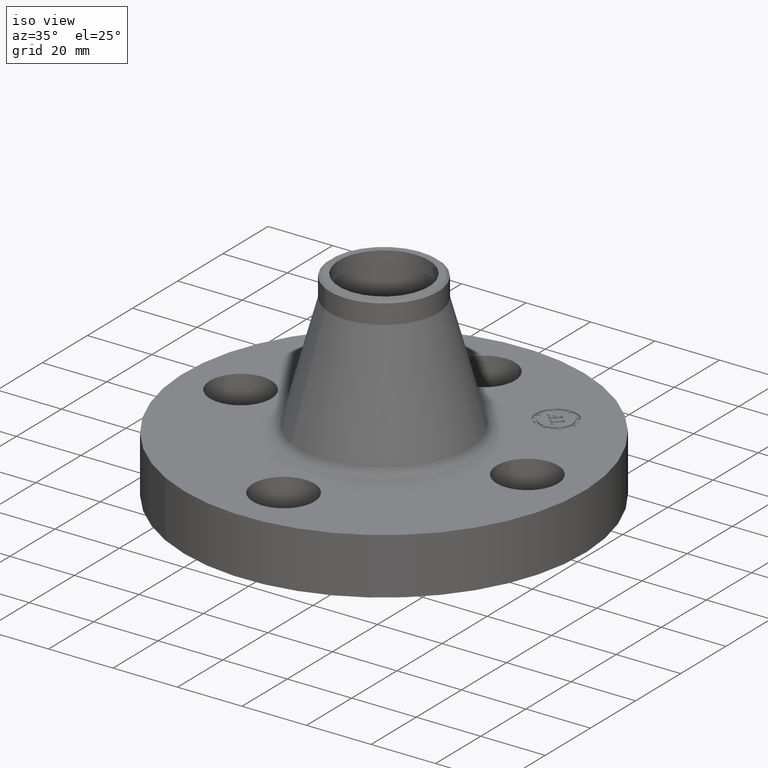
[diagram: clean part render]
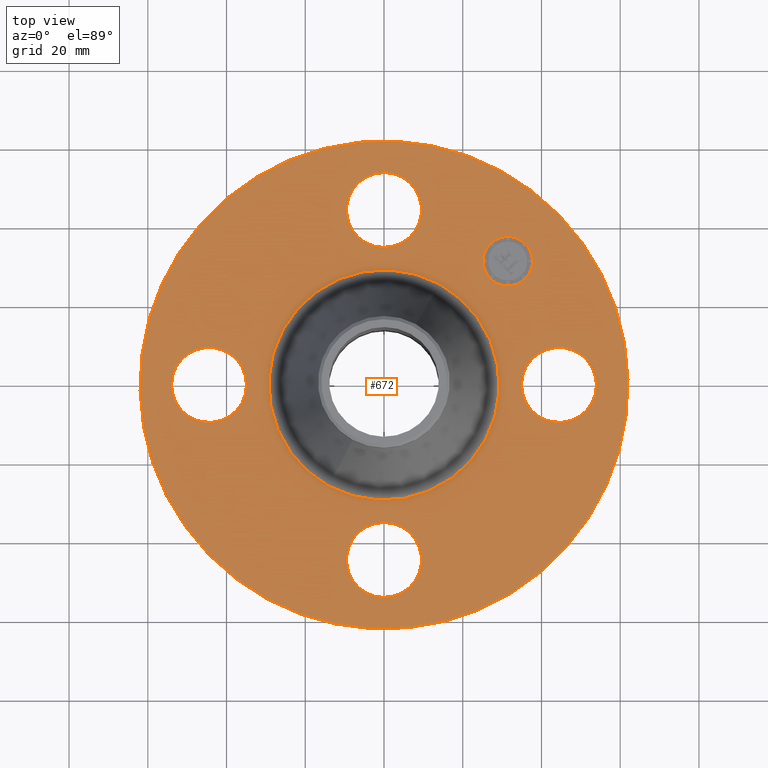
[diagram: tour spotlight — one face highlighted and labeled with its STEP entity id]
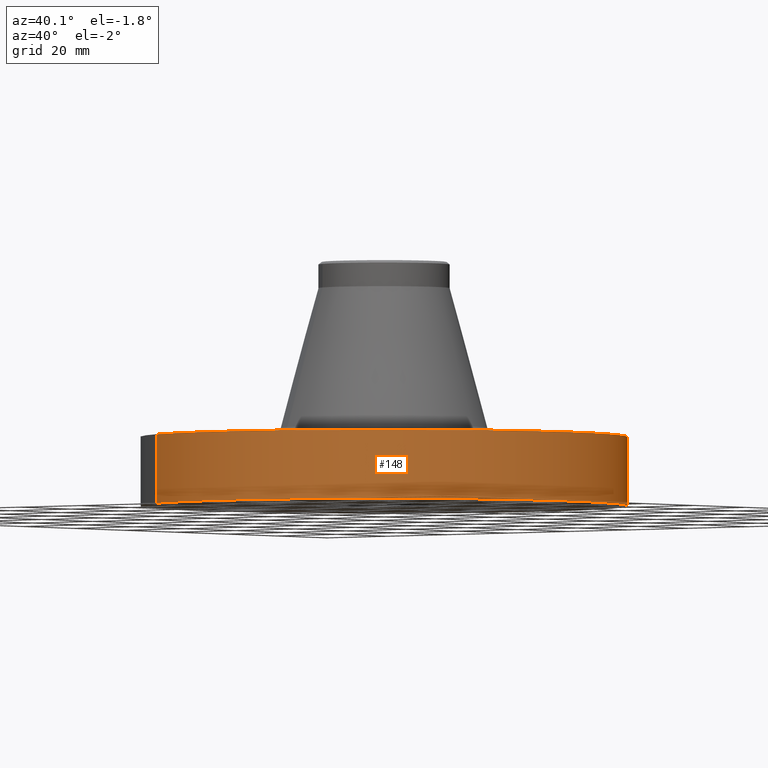
[diagram: tour spotlight — one face highlighted and labeled with its STEP entity id]
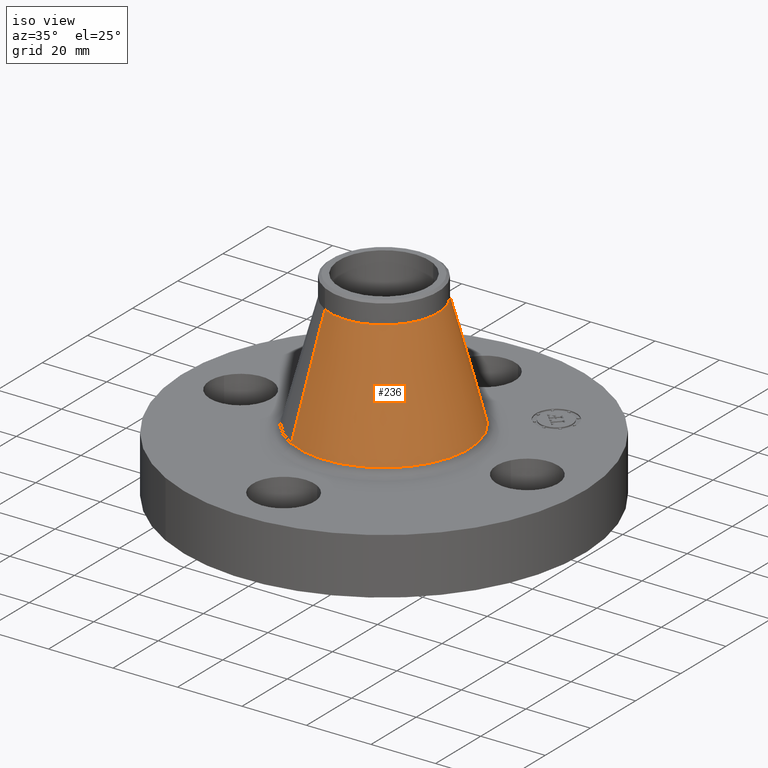
[diagram: tour spotlight — one face highlighted and labeled with its STEP entity id]
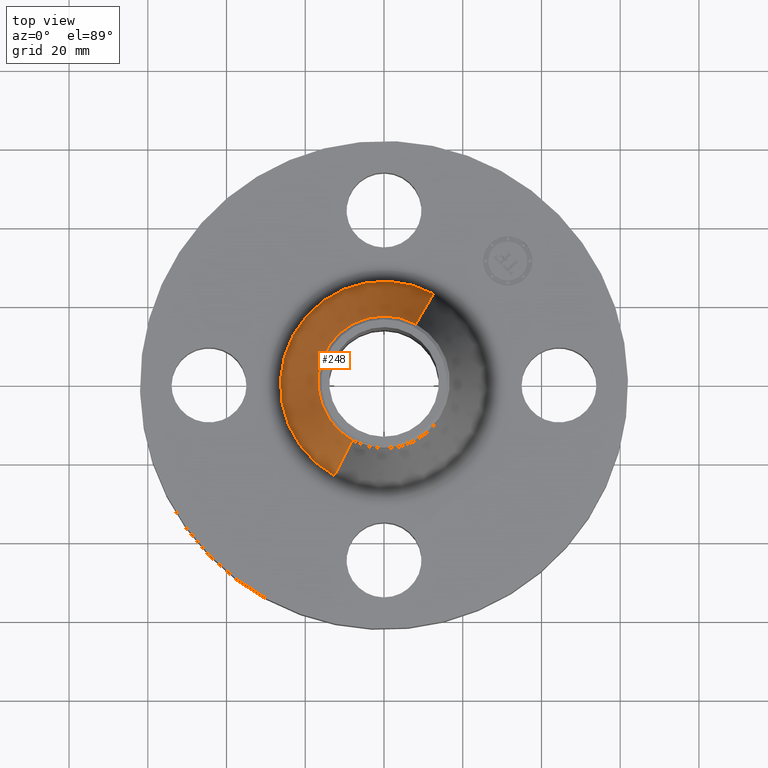
[diagram: tour spotlight — one face highlighted and labeled with its STEP entity id]
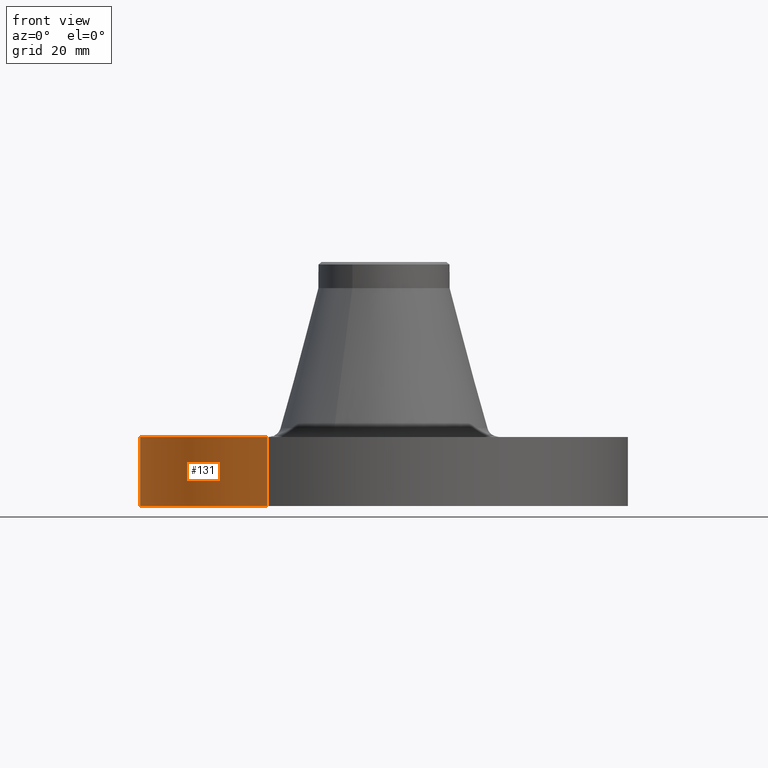
[diagram: tour spotlight — one face highlighted and labeled with its STEP entity id]
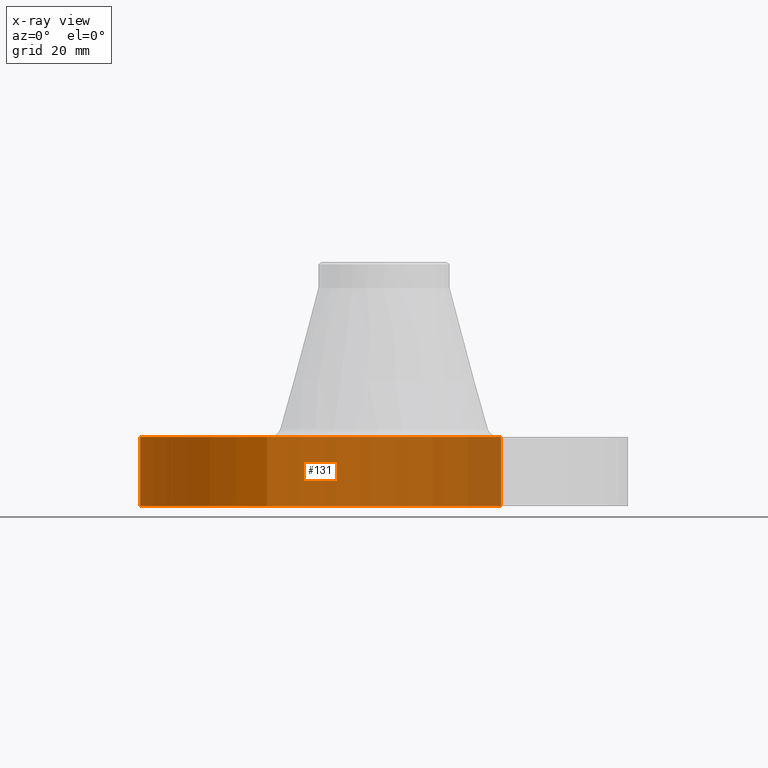
[diagram: x-ray of the same camera — body ghosted, this tour face saturated]
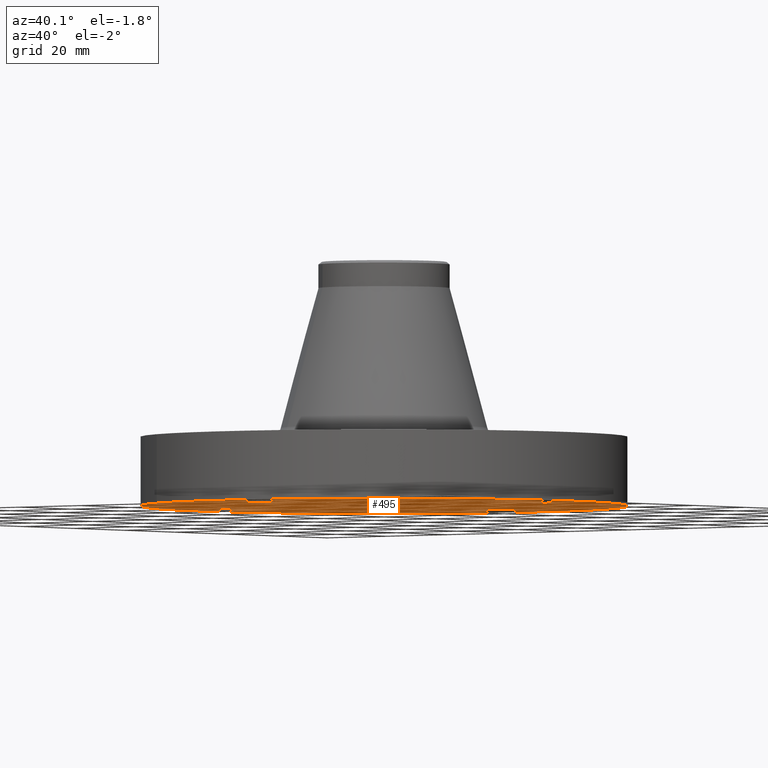
[diagram: tour spotlight — one face highlighted and labeled with its STEP entity id]
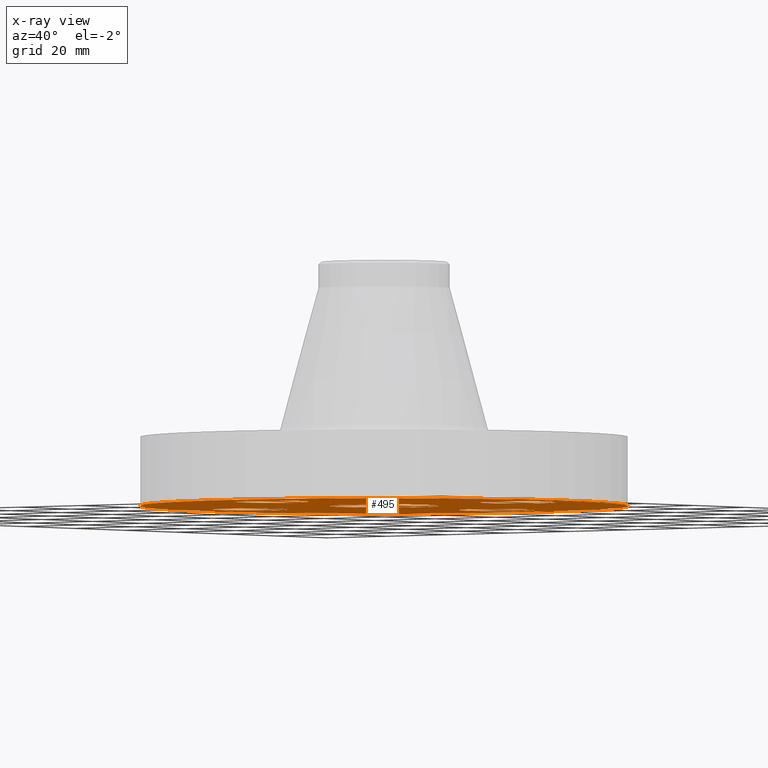
[diagram: x-ray of the same camera — body ghosted, this tour face saturated]
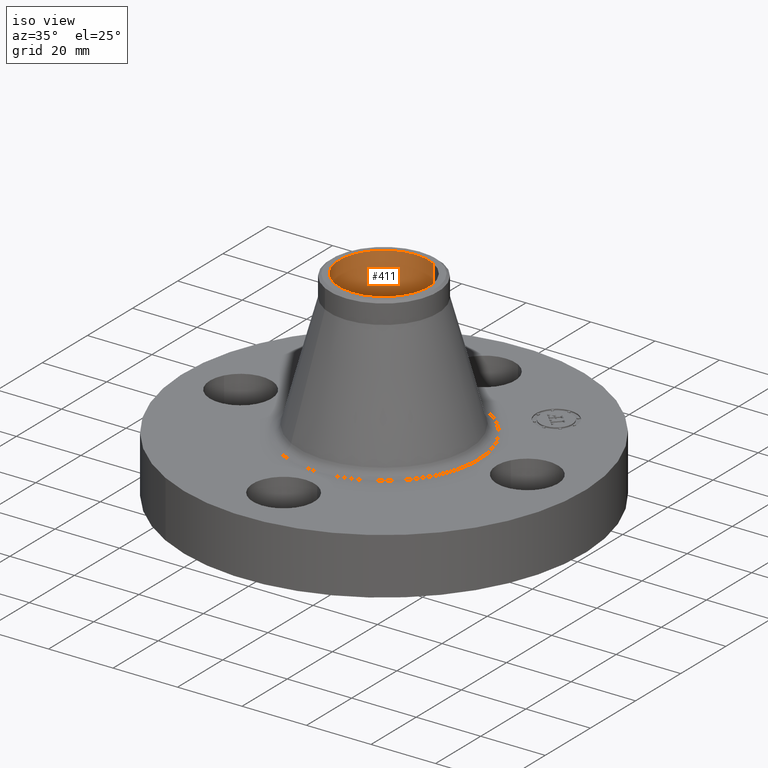
[diagram: tour spotlight — one face highlighted and labeled with its STEP entity id]
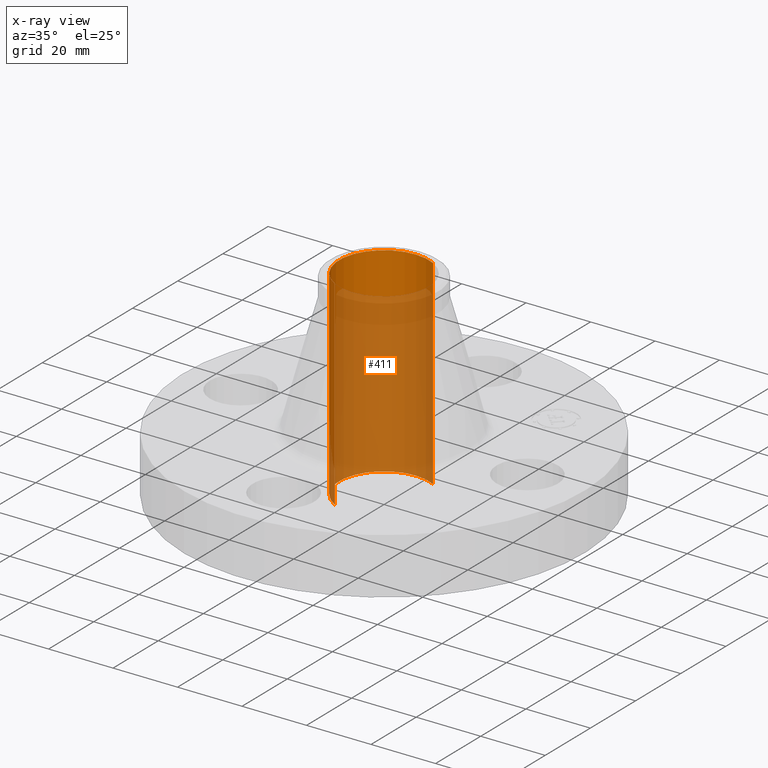
[diagram: x-ray of the same camera — body ghosted, this tour face saturated]
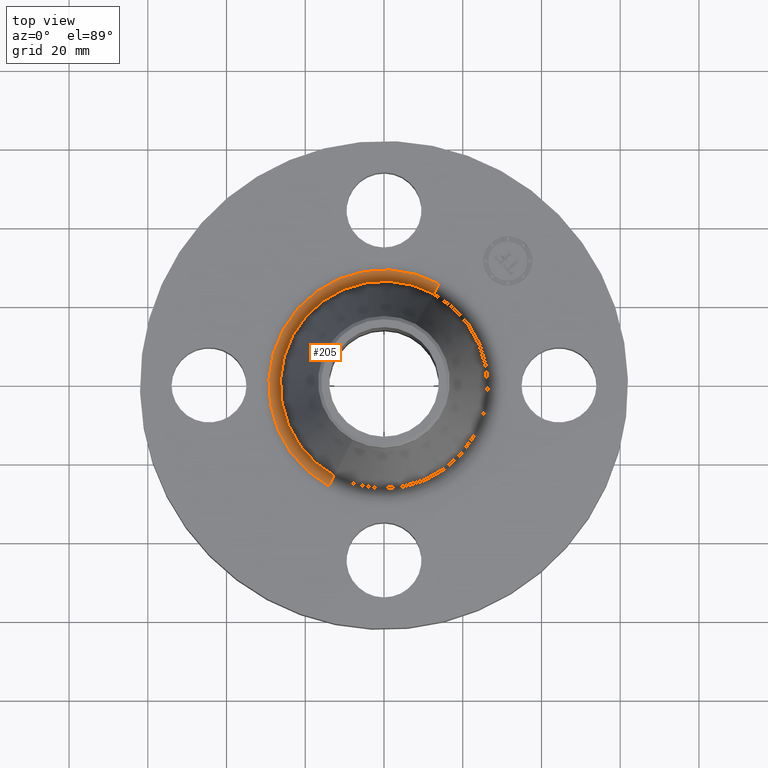
[diagram: tour spotlight — one face highlighted and labeled with its STEP entity id]
A machine part: a face-by-face anatomy tour. The part has 408 B-rep faces; the first image is the clean iso view, then the 8 largest visible faces are spotlighted one at a time (largest first), each with its STEP entity span.

Face 1 — top view, entity #672. In plain terms, the highlighted planar face has unit normal (0, 0, -1).
Definition (entity closure, byte-faithful):
#65=AXIS2_PLACEMENT_3D('Circle Axis2P3D',#63,#64,$) ;
#82=AXIS2_PLACEMENT_3D('Circle Axis2P3D',#80,#81,$) ;
#115=AXIS2_PLACEMENT_3D('Circle Axis2P3D',#113,#114,$) ;
#139=AXIS2_PLACEMENT_3D('Circle Axis2P3D',#137,#138,$) ;
#156=AXIS2_PLACEMENT_3D('Circle Axis2P3D',#154,#155,$) ;
#191=AXIS2_PLACEMENT_3D('Circle Axis2P3D',#189,#190,$) ;
#517=AXIS2_PLACEMENT_3D('Circle Axis2P3D',#515,#516,$) ;
#529=AXIS2_PLACEMENT_3D('Circle Axis2P3D',#527,#528,$) ;
#560=AXIS2_PLACEMENT_3D('Circle Axis2P3D',#558,#559,$) ;
#572=AXIS2_PLACEMENT_3D('Circle Axis2P3D',#570,#571,$) ;
#603=AXIS2_PLACEMENT_3D('Circle Axis2P3D',#601,#602,$) ;
#615=AXIS2_PLACEMENT_3D('Circle Axis2P3D',#613,#614,$) ;
#628=AXIS2_PLACEMENT_3D('Plane Axis2P3D',#625,#626,#627) ;
#656=AXIS2_PLACEMENT_3D('Circle Axis2P3D',#654,#655,$) ;
#665=AXIS2_PLACEMENT_3D('Circle Axis2P3D',#663,#664,$) ;
#46=CARTESIAN_POINT('Vertex',(1.4209065393,0.179784576977,0.690000000003)) ;
#60=CARTESIAN_POINT('Vertex',(2.07909346072,-0.179784576977,0.690000000003)) ;
#63=CARTESIAN_POINT('Axis2P3D Location',(1.75000000001,0.,0.690000000003)) ;
#80=CARTESIAN_POINT('Axis2P3D Location',(1.75000000001,0.,0.690000000003)) ;
#110=CARTESIAN_POINT('Vertex',(-1.1697983142,-2.14130145102,0.690000000003)) ;
#113=CARTESIAN_POINT('Axis2P3D Location',(0.,0.,0.690000000003)) ;
#117=CARTESIAN_POINT('Vertex',(1.1697983142,2.14130145102,0.690000000003)) ;
#137=CARTESIAN_POINT('Axis2P3D Location',(0.,0.,0.690000000003)) ;
#154=CARTESIAN_POINT('Axis2P3D Location',(0.,0.,0.690000000003)) ;
#158=CARTESIAN_POINT('Vertex',(0.552304154846,1.0109859741,0.690000000003)) ;
#160=CARTESIAN_POINT('Vertex',(-0.552304154846,-1.0109859741,0.690000000003)) ;
#189=CARTESIAN_POINT('Axis2P3D Location',(0.,0.,0.690000000003)) ;
#505=CARTESIAN_POINT('Vertex',(-0.179784576977,1.4209065393,0.690000000003)) ;
#512=CARTESIAN_POINT('Vertex',(0.179784576977,2.07909346072,0.690000000003)) ;
#515=CARTESIAN_POINT('Axis2P3D Location',(-3.21469784777E-016,1.75000000001,0.690000000003)) ;
#527=CARTESIAN_POINT('Axis2P3D Location',(-3.21469784777E-016,1.75000000001,0.690000000003)) ;
#548=CARTESIAN_POINT('Vertex',(-1.4209065393,-0.179784576977,0.690000000003)) ;
#555=CARTESIAN_POINT('Vertex',(-2.07909346072,0.179784576977,0.690000000003)) ;
#558=CARTESIAN_POINT('Axis2P3D Location',(-1.75000000001,-2.14313189852E-016,0.690000000003)) ;
#570=CARTESIAN_POINT('Axis2P3D Location',(-1.75000000001,-2.14313189852E-016,0.690000000003)) ;
#591=CARTESIAN_POINT('Vertex',(0.179784576977,-1.4209065393,0.690000000003)) ;
#598=CARTESIAN_POINT('Vertex',(-0.179784576977,-2.07909346072,0.690000000003)) ;
#601=CARTESIAN_POINT('Axis2P3D Location',(-1.72584639625E-016,-1.75000000001,0.690000000003)) ;
#613=CARTESIAN_POINT('Axis2P3D Location',(-1.72584639625E-016,-1.75000000001,0.690000000003)) ;
#625=CARTESIAN_POINT('Axis2P3D Location',(0.,2.44000000001,0.690000000003)) ;
#654=CARTESIAN_POINT('Axis2P3D Location',(1.23743686708,1.23743686708,0.690000000003)) ;
#658=CARTESIAN_POINT('Vertex',(1.06242793874,1.41244579543,0.690000000003)) ;
#660=CARTESIAN_POINT('Vertex',(1.41244579543,1.06242793874,0.690000000003)) ;
#663=CARTESIAN_POINT('Axis2P3D Location',(1.23743686708,1.23743686708,0.690000000003)) ;
#64=DIRECTION('Axis2P3D Direction',(0.,-0.,-0.0393700787402)) ;
#81=DIRECTION('Axis2P3D Direction',(0.,-0.,-0.0393700787402)) ;
#114=DIRECTION('Axis2P3D Direction',(0.,0.,-0.0393700787402)) ;
#138=DIRECTION('Axis2P3D Direction',(0.,0.,-0.0393700787402)) ;
#155=DIRECTION('Axis2P3D Direction',(0.,0.,-0.0393700787402)) ;
#190=DIRECTION('Axis2P3D Direction',(0.,0.,-0.0393700787402)) ;
#516=DIRECTION('Axis2P3D Direction',(0.,0.,-0.0393700787402)) ;
#528=DIRECTION('Axis2P3D Direction',(0.,0.,-0.0393700787402)) ;
#559=DIRECTION('Axis2P3D Direction',(-0.,0.,-0.0393700787402)) ;
#571=DIRECTION('Axis2P3D Direction',(-0.,0.,-0.0393700787402)) ;
#602=DIRECTION('Axis2P3D Direction',(0.,-0.,-0.0393700787402)) ;
#614=DIRECTION('Axis2P3D Direction',(0.,-0.,-0.0393700787402)) ;
#626=DIRECTION('Axis2P3D Direction',(0.,0.,-0.0393700787402)) ;
#627=DIRECTION('Axis2P3D XDirection',(0.0393700787402,0.,0.)) ;
#655=DIRECTION('Axis2P3D Direction',(0.,0.,-0.0393700787402)) ;
#664=DIRECTION('Axis2P3D Direction',(0.,0.,-0.0393700787402)) ;
#631=ORIENTED_EDGE('',*,*,#141,.F.) ;
#632=ORIENTED_EDGE('',*,*,#119,.F.) ;
#635=ORIENTED_EDGE('',*,*,#67,.T.) ;
#636=ORIENTED_EDGE('',*,*,#84,.T.) ;
#639=ORIENTED_EDGE('',*,*,#193,.T.) ;
#640=ORIENTED_EDGE('',*,*,#162,.T.) ;
#643=ORIENTED_EDGE('',*,*,#617,.T.) ;
#644=ORIENTED_EDGE('',*,*,#605,.T.) ;
#647=ORIENTED_EDGE('',*,*,#574,.T.) ;
#648=ORIENTED_EDGE('',*,*,#562,.T.) ;
#651=ORIENTED_EDGE('',*,*,#531,.T.) ;
#652=ORIENTED_EDGE('',*,*,#519,.T.) ;
#669=ORIENTED_EDGE('',*,*,#662,.T.) ;
#670=ORIENTED_EDGE('',*,*,#667,.T.) ;
#637=FACE_BOUND('',#634,.T.) ;
#641=FACE_BOUND('',#638,.T.) ;
#645=FACE_BOUND('',#642,.T.) ;
#649=FACE_BOUND('',#646,.T.) ;
#653=FACE_BOUND('',#650,.T.) ;
#671=FACE_BOUND('',#668,.T.) ;
#672=ADVANCED_FACE('PartBody',(#633,#637,#641,#645,#649,#653,#671),#629,.F.) ;
#66=CIRCLE('generated circle',#65,0.375000000001) ;
#83=CIRCLE('generated circle',#82,0.375000000001) ;
#116=CIRCLE('generated circle',#115,2.44000000001) ;
#140=CIRCLE('generated circle',#139,2.44000000001) ;
#157=CIRCLE('generated circle',#156,1.15201237809) ;
#192=CIRCLE('generated circle',#191,1.15201237809) ;
#518=CIRCLE('generated circle',#517,0.375000000001) ;
#530=CIRCLE('generated circle',#529,0.375000000001) ;
#561=CIRCLE('generated circle',#560,0.375000000002) ;
#573=CIRCLE('generated circle',#572,0.375000000002) ;
#604=CIRCLE('generated circle',#603,0.375000000001) ;
#616=CIRCLE('generated circle',#615,0.375000000001) ;
#657=CIRCLE('generated circle',#656,0.247500000001) ;
#666=CIRCLE('generated circle',#665,0.247500000001) ;
#67=EDGE_CURVE('',#47,#61,#66,.T.) ;
#84=EDGE_CURVE('',#61,#47,#83,.T.) ;
#119=EDGE_CURVE('',#111,#118,#116,.T.) ;
#141=EDGE_CURVE('',#118,#111,#140,.T.) ;
#162=EDGE_CURVE('',#159,#161,#157,.T.) ;
#193=EDGE_CURVE('',#161,#159,#192,.T.) ;
#519=EDGE_CURVE('',#506,#513,#518,.T.) ;
#531=EDGE_CURVE('',#513,#506,#530,.T.) ;
#562=EDGE_CURVE('',#549,#556,#561,.T.) ;
#574=EDGE_CURVE('',#556,#549,#573,.T.) ;
#605=EDGE_CURVE('',#592,#599,#604,.T.) ;
#617=EDGE_CURVE('',#599,#592,#616,.T.) ;
#662=EDGE_CURVE('',#659,#661,#657,.T.) ;
#667=EDGE_CURVE('',#661,#659,#666,.T.) ;
#630=EDGE_LOOP('',(#631,#632)) ;
#634=EDGE_LOOP('',(#635,#636)) ;
#638=EDGE_LOOP('',(#639,#640)) ;
#642=EDGE_LOOP('',(#643,#644)) ;
#646=EDGE_LOOP('',(#647,#648)) ;
#650=EDGE_LOOP('',(#651,#652)) ;
#668=EDGE_LOOP('',(#669,#670)) ;
#633=FACE_OUTER_BOUND('',#630,.T.) ;
#629=PLANE('',#628) ;
#47=VERTEX_POINT('',#46) ;
#61=VERTEX_POINT('',#60) ;
#111=VERTEX_POINT('',#110) ;
#118=VERTEX_POINT('',#117) ;
#159=VERTEX_POINT('',#158) ;
#161=VERTEX_POINT('',#160) ;
#506=VERTEX_POINT('',#505) ;
#513=VERTEX_POINT('',#512) ;
#549=VERTEX_POINT('',#548) ;
#556=VERTEX_POINT('',#555) ;
#592=VERTEX_POINT('',#591) ;
#599=VERTEX_POINT('',#598) ;
#659=VERTEX_POINT('',#658) ;
#661=VERTEX_POINT('',#660) ;

Face 2 — auxiliary view, entity #148. In plain terms, the highlighted cylindrical surface (partial cylindrical patch) has radius 61.976 mm, axis along (0, 0, -1).
Definition (entity closure, byte-faithful):
#95=AXIS2_PLACEMENT_3D('Cylinder Axis2P3D',#92,#93,#94) ;
#134=AXIS2_PLACEMENT_3D('Circle Axis2P3D',#132,#133,$) ;
#139=AXIS2_PLACEMENT_3D('Circle Axis2P3D',#137,#138,$) ;
#92=CARTESIAN_POINT('Axis2P3D Location',(0.,0.,1.22)) ;
#101=CARTESIAN_POINT('Vertex',(-1.1697983142,-2.14130145102,2.79741234551E-016)) ;
#103=CARTESIAN_POINT('Vertex',(1.1697983142,2.14130145102,2.79741234551E-016)) ;
#106=CARTESIAN_POINT('Line Origine',(-1.1697983142,-2.14130145102,0.345000000001)) ;
#110=CARTESIAN_POINT('Vertex',(-1.1697983142,-2.14130145102,0.690000000003)) ;
#117=CARTESIAN_POINT('Vertex',(1.1697983142,2.14130145102,0.690000000003)) ;
#120=CARTESIAN_POINT('Line Origine',(1.1697983142,2.14130145102,0.345000000001)) ;
#132=CARTESIAN_POINT('Axis2P3D Location',(0.,0.,1.39870617276E-016)) ;
#137=CARTESIAN_POINT('Axis2P3D Location',(0.,0.,0.690000000003)) ;
#93=DIRECTION('Axis2P3D Direction',(0.,0.,-0.0393700787402)) ;
#94=DIRECTION('Axis2P3D XDirection',(0.0188750212049,0.0345504945626,0.)) ;
#107=DIRECTION('Vector Direction',(0.,0.,-0.0393700787402)) ;
#121=DIRECTION('Vector Direction',(0.,0.,-0.0393700787402)) ;
#133=DIRECTION('Axis2P3D Direction',(0.,0.,-0.0393700787402)) ;
#138=DIRECTION('Axis2P3D Direction',(0.,0.,-0.0393700787402)) ;
#108=VECTOR('Line Direction',#107,0.0393700787402) ;
#122=VECTOR('Line Direction',#121,0.0393700787402) ;
#143=ORIENTED_EDGE('',*,*,#136,.F.) ;
#144=ORIENTED_EDGE('',*,*,#124,.T.) ;
#145=ORIENTED_EDGE('',*,*,#141,.T.) ;
#146=ORIENTED_EDGE('',*,*,#112,.F.) ;
#148=ADVANCED_FACE('PartBody',(#147),#96,.T.) ;
#135=CIRCLE('generated circle',#134,2.44000000001) ;
#140=CIRCLE('generated circle',#139,2.44000000001) ;
#96=CYLINDRICAL_SURFACE('generated cylinder',#95,2.44000000001) ;
#112=EDGE_CURVE('',#102,#111,#109,.F.) ;
#124=EDGE_CURVE('',#104,#118,#123,.F.) ;
#136=EDGE_CURVE('',#104,#102,#135,.T.) ;
#141=EDGE_CURVE('',#118,#111,#140,.T.) ;
#142=EDGE_LOOP('',(#143,#144,#145,#146)) ;
#147=FACE_OUTER_BOUND('',#142,.T.) ;
#109=LINE('Line',#106,#108) ;
#123=LINE('Line',#120,#122) ;
#102=VERTEX_POINT('',#101) ;
#104=VERTEX_POINT('',#103) ;
#111=VERTEX_POINT('',#110) ;
#118=VERTEX_POINT('',#117) ;

Face 3 — iso view, entity #236. In plain terms, the highlighted conical surface has half-angle 15.04 deg.
Definition (entity closure, byte-faithful):
#172=AXIS2_PLACEMENT_3D('Circle Axis2P3D',#170,#171,$) ;
#209=AXIS2_PLACEMENT_3D('Cone Axis2P3D',#206,#207,#208) ;
#220=AXIS2_PLACEMENT_3D('Circle Axis2P3D',#218,#219,$) ;
#167=CARTESIAN_POINT('Vertex',(0.496743873786,0.909283561802,0.778860402991)) ;
#170=CARTESIAN_POINT('Axis2P3D Location',(0.,0.,0.778860402991)) ;
#174=CARTESIAN_POINT('Vertex',(-0.496743873786,-0.909283561802,0.778860402991)) ;
#206=CARTESIAN_POINT('Axis2P3D Location',(0.,0.,2.17864201628)) ;
#211=CARTESIAN_POINT('Line Origine',(0.406582364633,0.744244026326,1.47875120964)) ;
#215=CARTESIAN_POINT('Vertex',(0.31642085548,0.57920449085,2.17864201628)) ;
#218=CARTESIAN_POINT('Axis2P3D Location',(0.,0.,2.17864201628)) ;
#222=CARTESIAN_POINT('Vertex',(-0.31642085548,-0.57920449085,2.17864201628)) ;
#225=CARTESIAN_POINT('Line Origine',(-0.406582364633,-0.744244026326,1.47875120964)) ;
#171=DIRECTION('Axis2P3D Direction',(0.,0.,-0.0393700787402)) ;
#207=DIRECTION('Axis2P3D Direction',(0.,0.,-0.0393700787402)) ;
#208=DIRECTION('Axis2P3D XDirection',(-0.0188750212049,-0.0345504945626,0.)) ;
#212=DIRECTION('Vector Direction',(0.00489800461591,0.00896573731031,-0.0380214177178)) ;
#219=DIRECTION('Axis2P3D Direction',(0.,0.,-0.0393700787402)) ;
#226=DIRECTION('Vector Direction',(-0.00489800461591,-0.00896573731031,-0.0380214177178)) ;
#213=VECTOR('Line Direction',#212,0.0393700787402) ;
#227=VECTOR('Line Direction',#226,0.0393700787402) ;
#231=ORIENTED_EDGE('',*,*,#176,.F.) ;
#232=ORIENTED_EDGE('',*,*,#217,.T.) ;
#233=ORIENTED_EDGE('',*,*,#224,.T.) ;
#234=ORIENTED_EDGE('',*,*,#229,.F.) ;
#236=ADVANCED_FACE('PartBody',(#235),#210,.T.) ;
#173=CIRCLE('generated circle',#172,1.03612309689) ;
#221=CIRCLE('generated circle',#220,0.660000000003) ;
#210=CONICAL_SURFACE('Cone',#209,0.660000000003,0.262500953483) ;
#176=EDGE_CURVE('',#168,#175,#173,.T.) ;
#217=EDGE_CURVE('',#168,#216,#214,.F.) ;
#224=EDGE_CURVE('',#216,#223,#221,.T.) ;
#229=EDGE_CURVE('',#175,#223,#228,.F.) ;
#230=EDGE_LOOP('',(#231,#232,#233,#234)) ;
#235=FACE_OUTER_BOUND('',#230,.T.) ;
#214=LINE('Line',#211,#213) ;
#228=LINE('Line',#225,#227) ;
#168=VERTEX_POINT('',#167) ;
#175=VERTEX_POINT('',#174) ;
#216=VERTEX_POINT('',#215) ;
#223=VERTEX_POINT('',#222) ;

Face 4 — top view, entity #248. In plain terms, the highlighted conical surface has half-angle 15.04 deg.
Definition (entity closure, byte-faithful):
#196=AXIS2_PLACEMENT_3D('Circle Axis2P3D',#194,#195,$) ;
#209=AXIS2_PLACEMENT_3D('Cone Axis2P3D',#206,#207,#208) ;
#239=AXIS2_PLACEMENT_3D('Circle Axis2P3D',#237,#238,$) ;
#167=CARTESIAN_POINT('Vertex',(0.496743873786,0.909283561802,0.778860402991)) ;
#174=CARTESIAN_POINT('Vertex',(-0.496743873786,-0.909283561802,0.778860402991)) ;
#194=CARTESIAN_POINT('Axis2P3D Location',(0.,0.,0.778860402991)) ;
#206=CARTESIAN_POINT('Axis2P3D Location',(0.,0.,2.17864201628)) ;
#211=CARTESIAN_POINT('Line Origine',(0.406582364633,0.744244026326,1.47875120964)) ;
#215=CARTESIAN_POINT('Vertex',(0.31642085548,0.57920449085,2.17864201628)) ;
#222=CARTESIAN_POINT('Vertex',(-0.31642085548,-0.57920449085,2.17864201628)) ;
#225=CARTESIAN_POINT('Line Origine',(-0.406582364633,-0.744244026326,1.47875120964)) ;
#237=CARTESIAN_POINT('Axis2P3D Location',(0.,0.,2.17864201628)) ;
#195=DIRECTION('Axis2P3D Direction',(0.,0.,-0.0393700787402)) ;
#207=DIRECTION('Axis2P3D Direction',(0.,0.,-0.0393700787402)) ;
#208=DIRECTION('Axis2P3D XDirection',(-0.0188750212049,-0.0345504945626,0.)) ;
#212=DIRECTION('Vector Direction',(0.00489800461591,0.00896573731031,-0.0380214177178)) ;
#226=DIRECTION('Vector Direction',(-0.00489800461591,-0.00896573731031,-0.0380214177178)) ;
#238=DIRECTION('Axis2P3D Direction',(0.,0.,-0.0393700787402)) ;
#213=VECTOR('Line Direction',#212,0.0393700787402) ;
#227=VECTOR('Line Direction',#226,0.0393700787402) ;
#243=ORIENTED_EDGE('',*,*,#198,.F.) ;
#244=ORIENTED_EDGE('',*,*,#229,.T.) ;
#245=ORIENTED_EDGE('',*,*,#241,.T.) ;
#246=ORIENTED_EDGE('',*,*,#217,.F.) ;
#248=ADVANCED_FACE('PartBody',(#247),#210,.T.) ;
#197=CIRCLE('generated circle',#196,1.03612309689) ;
#240=CIRCLE('generated circle',#239,0.660000000003) ;
#210=CONICAL_SURFACE('Cone',#209,0.660000000003,0.262500953483) ;
#198=EDGE_CURVE('',#175,#168,#197,.T.) ;
#217=EDGE_CURVE('',#168,#216,#214,.F.) ;
#229=EDGE_CURVE('',#175,#223,#228,.F.) ;
#241=EDGE_CURVE('',#223,#216,#240,.T.) ;
#242=EDGE_LOOP('',(#243,#244,#245,#246)) ;
#247=FACE_OUTER_BOUND('',#242,.T.) ;
#214=LINE('Line',#211,#213) ;
#228=LINE('Line',#225,#227) ;
#168=VERTEX_POINT('',#167) ;
#175=VERTEX_POINT('',#174) ;
#216=VERTEX_POINT('',#215) ;
#223=VERTEX_POINT('',#222) ;

Face 5 — front view, entity #131. An x-ray twin of the same camera follows (body ghosted, this face saturated) — the face is partly hidden behind the body. In plain terms, the highlighted cylindrical surface (partial cylindrical patch) has radius 61.976 mm, axis along (0, 0, -1).
Definition (entity closure, byte-faithful):
#95=AXIS2_PLACEMENT_3D('Cylinder Axis2P3D',#92,#93,#94) ;
#99=AXIS2_PLACEMENT_3D('Circle Axis2P3D',#97,#98,$) ;
#115=AXIS2_PLACEMENT_3D('Circle Axis2P3D',#113,#114,$) ;
#92=CARTESIAN_POINT('Axis2P3D Location',(0.,0.,1.22)) ;
#97=CARTESIAN_POINT('Axis2P3D Location',(0.,0.,1.39870617276E-016)) ;
#101=CARTESIAN_POINT('Vertex',(-1.1697983142,-2.14130145102,2.79741234551E-016)) ;
#103=CARTESIAN_POINT('Vertex',(1.1697983142,2.14130145102,2.79741234551E-016)) ;
#106=CARTESIAN_POINT('Line Origine',(-1.1697983142,-2.14130145102,0.345000000001)) ;
#110=CARTESIAN_POINT('Vertex',(-1.1697983142,-2.14130145102,0.690000000003)) ;
#113=CARTESIAN_POINT('Axis2P3D Location',(0.,0.,0.690000000003)) ;
#117=CARTESIAN_POINT('Vertex',(1.1697983142,2.14130145102,0.690000000003)) ;
#120=CARTESIAN_POINT('Line Origine',(1.1697983142,2.14130145102,0.345000000001)) ;
#93=DIRECTION('Axis2P3D Direction',(0.,0.,-0.0393700787402)) ;
#94=DIRECTION('Axis2P3D XDirection',(0.0188750212049,0.0345504945626,0.)) ;
#98=DIRECTION('Axis2P3D Direction',(0.,0.,-0.0393700787402)) ;
#107=DIRECTION('Vector Direction',(0.,0.,-0.0393700787402)) ;
#114=DIRECTION('Axis2P3D Direction',(0.,0.,-0.0393700787402)) ;
#121=DIRECTION('Vector Direction',(0.,0.,-0.0393700787402)) ;
#108=VECTOR('Line Direction',#107,0.0393700787402) ;
#122=VECTOR('Line Direction',#121,0.0393700787402) ;
#126=ORIENTED_EDGE('',*,*,#105,.F.) ;
#127=ORIENTED_EDGE('',*,*,#112,.T.) ;
#128=ORIENTED_EDGE('',*,*,#119,.T.) ;
#129=ORIENTED_EDGE('',*,*,#124,.F.) ;
#131=ADVANCED_FACE('PartBody',(#130),#96,.T.) ;
#100=CIRCLE('generated circle',#99,2.44000000001) ;
#116=CIRCLE('generated circle',#115,2.44000000001) ;
#96=CYLINDRICAL_SURFACE('generated cylinder',#95,2.44000000001) ;
#105=EDGE_CURVE('',#102,#104,#100,.T.) ;
#112=EDGE_CURVE('',#102,#111,#109,.F.) ;
#119=EDGE_CURVE('',#111,#118,#116,.T.) ;
#124=EDGE_CURVE('',#104,#118,#123,.F.) ;
#125=EDGE_LOOP('',(#126,#127,#128,#129)) ;
#130=FACE_OUTER_BOUND('',#125,.T.) ;
#109=LINE('Line',#106,#108) ;
#123=LINE('Line',#120,#122) ;
#102=VERTEX_POINT('',#101) ;
#104=VERTEX_POINT('',#103) ;
#111=VERTEX_POINT('',#110) ;
#118=VERTEX_POINT('',#117) ;

Face 6 — auxiliary view, entity #495. An x-ray twin of the same camera follows (body ghosted, this face saturated) — the face is partly hidden behind the body. In plain terms, the highlighted planar face has unit normal (0, 0, -1).
Definition (entity closure, byte-faithful):
#51=AXIS2_PLACEMENT_3D('Circle Axis2P3D',#49,#50,$) ;
#77=AXIS2_PLACEMENT_3D('Circle Axis2P3D',#75,#76,$) ;
#99=AXIS2_PLACEMENT_3D('Circle Axis2P3D',#97,#98,$) ;
#134=AXIS2_PLACEMENT_3D('Circle Axis2P3D',#132,#133,$) ;
#395=AXIS2_PLACEMENT_3D('Circle Axis2P3D',#393,#394,$) ;
#414=AXIS2_PLACEMENT_3D('Circle Axis2P3D',#412,#413,$) ;
#427=AXIS2_PLACEMENT_3D('Plane Axis2P3D',#424,#425,#426) ;
#443=AXIS2_PLACEMENT_3D('Circle Axis2P3D',#441,#442,$) ;
#452=AXIS2_PLACEMENT_3D('Circle Axis2P3D',#450,#451,$) ;
#461=AXIS2_PLACEMENT_3D('Circle Axis2P3D',#459,#460,$) ;
#470=AXIS2_PLACEMENT_3D('Circle Axis2P3D',#468,#469,$) ;
#479=AXIS2_PLACEMENT_3D('Circle Axis2P3D',#477,#478,$) ;
#488=AXIS2_PLACEMENT_3D('Circle Axis2P3D',#486,#487,$) ;
#44=CARTESIAN_POINT('Vertex',(1.4209065393,0.179784576977,0.)) ;
#49=CARTESIAN_POINT('Axis2P3D Location',(1.75000000001,0.,0.)) ;
#53=CARTESIAN_POINT('Vertex',(2.07909346072,-0.179784576977,0.)) ;
#75=CARTESIAN_POINT('Axis2P3D Location',(1.75000000001,0.,0.)) ;
#97=CARTESIAN_POINT('Axis2P3D Location',(0.,0.,1.39870617276E-016)) ;
#101=CARTESIAN_POINT('Vertex',(-1.1697983142,-2.14130145102,2.79741234551E-016)) ;
#103=CARTESIAN_POINT('Vertex',(1.1697983142,2.14130145102,2.79741234551E-016)) ;
#132=CARTESIAN_POINT('Axis2P3D Location',(0.,0.,1.39870617276E-016)) ;
#390=CARTESIAN_POINT('Vertex',(-0.262964907925,-0.481354035199,-4.05624790099E-015)) ;
#393=CARTESIAN_POINT('Axis2P3D Location',(0.,0.,-4.47585975282E-015)) ;
#397=CARTESIAN_POINT('Vertex',(0.262964907925,0.481354035199,-4.05624790099E-015)) ;
#412=CARTESIAN_POINT('Axis2P3D Location',(0.,0.,-4.47585975282E-015)) ;
#424=CARTESIAN_POINT('Axis2P3D Location',(0.,0.548500000002,0.)) ;
#441=CARTESIAN_POINT('Axis2P3D Location',(-1.39870617276E-016,-1.75000000001,0.)) ;
#445=CARTESIAN_POINT('Vertex',(0.179784576977,-1.4209065393,0.)) ;
#447=CARTESIAN_POINT('Vertex',(-0.179784576977,-2.07909346072,0.)) ;
#450=CARTESIAN_POINT('Axis2P3D Location',(-2.09805925913E-016,-1.75000000001,0.)) ;
#459=CARTESIAN_POINT('Axis2P3D Location',(-1.75000000001,-4.19611851827E-016,0.)) ;
#463=CARTESIAN_POINT('Vertex',(-1.4209065393,-0.179784576977,0.)) ;
#465=CARTESIAN_POINT('Vertex',(-2.07909346072,0.179784576977,0.)) ;
#468=CARTESIAN_POINT('Axis2P3D Location',(-1.75000000001,-2.09805925913E-016,0.)) ;
#477=CARTESIAN_POINT('Axis2P3D Location',(-4.19611851827E-016,1.75000000001,0.)) ;
#481=CARTESIAN_POINT('Vertex',(-0.179784576977,1.4209065393,0.)) ;
#483=CARTESIAN_POINT('Vertex',(0.179784576977,2.07909346072,0.)) ;
#486=CARTESIAN_POINT('Axis2P3D Location',(-3.1470888887E-016,1.75000000001,0.)) ;
#50=DIRECTION('Axis2P3D Direction',(0.,-0.,-0.0393700787402)) ;
#76=DIRECTION('Axis2P3D Direction',(0.,-0.,-0.0393700787402)) ;
#98=DIRECTION('Axis2P3D Direction',(0.,0.,-0.0393700787402)) ;
#133=DIRECTION('Axis2P3D Direction',(0.,0.,-0.0393700787402)) ;
#394=DIRECTION('Axis2P3D Direction',(0.,0.,-0.0393700787402)) ;
#413=DIRECTION('Axis2P3D Direction',(0.,0.,-0.0393700787402)) ;
#425=DIRECTION('Axis2P3D Direction',(0.,0.,-0.0393700787402)) ;
#426=DIRECTION('Axis2P3D XDirection',(0.0393700787402,0.,0.)) ;
#442=DIRECTION('Axis2P3D Direction',(0.,0.,-0.0393700787402)) ;
#451=DIRECTION('Axis2P3D Direction',(0.,0.,-0.0393700787402)) ;
#460=DIRECTION('Axis2P3D Direction',(0.,0.,-0.0393700787402)) ;
#469=DIRECTION('Axis2P3D Direction',(0.,0.,-0.0393700787402)) ;
#478=DIRECTION('Axis2P3D Direction',(0.,0.,-0.0393700787402)) ;
#487=DIRECTION('Axis2P3D Direction',(0.,0.,-0.0393700787402)) ;
#430=ORIENTED_EDGE('',*,*,#105,.T.) ;
#431=ORIENTED_EDGE('',*,*,#136,.T.) ;
#434=ORIENTED_EDGE('',*,*,#79,.F.) ;
#435=ORIENTED_EDGE('',*,*,#55,.F.) ;
#438=ORIENTED_EDGE('',*,*,#416,.F.) ;
#439=ORIENTED_EDGE('',*,*,#399,.F.) ;
#456=ORIENTED_EDGE('',*,*,#449,.F.) ;
#457=ORIENTED_EDGE('',*,*,#454,.F.) ;
#474=ORIENTED_EDGE('',*,*,#467,.F.) ;
#475=ORIENTED_EDGE('',*,*,#472,.F.) ;
#492=ORIENTED_EDGE('',*,*,#485,.F.) ;
#493=ORIENTED_EDGE('',*,*,#490,.F.) ;
#436=FACE_BOUND('',#433,.T.) ;
#440=FACE_BOUND('',#437,.T.) ;
#458=FACE_BOUND('',#455,.T.) ;
#476=FACE_BOUND('',#473,.T.) ;
#494=FACE_BOUND('',#491,.T.) ;
#495=ADVANCED_FACE('PartBody',(#432,#436,#440,#458,#476,#494),#428,.T.) ;
#52=CIRCLE('generated circle',#51,0.375000000001) ;
#78=CIRCLE('generated circle',#77,0.375000000001) ;
#100=CIRCLE('generated circle',#99,2.44000000001) ;
#135=CIRCLE('generated circle',#134,2.44000000001) ;
#396=CIRCLE('generated circle',#395,0.548500000002) ;
#415=CIRCLE('generated circle',#414,0.548500000002) ;
#444=CIRCLE('generated circle',#443,0.375000000001) ;
#453=CIRCLE('generated circle',#452,0.375000000001) ;
#462=CIRCLE('generated circle',#461,0.375000000002) ;
#471=CIRCLE('generated circle',#470,0.375000000002) ;
#480=CIRCLE('generated circle',#479,0.375000000001) ;
#489=CIRCLE('generated circle',#488,0.375000000001) ;
#55=EDGE_CURVE('',#45,#54,#52,.T.) ;
#79=EDGE_CURVE('',#54,#45,#78,.T.) ;
#105=EDGE_CURVE('',#102,#104,#100,.T.) ;
#136=EDGE_CURVE('',#104,#102,#135,.T.) ;
#399=EDGE_CURVE('',#391,#398,#396,.T.) ;
#416=EDGE_CURVE('',#398,#391,#415,.T.) ;
#449=EDGE_CURVE('',#446,#448,#444,.T.) ;
#454=EDGE_CURVE('',#448,#446,#453,.T.) ;
#467=EDGE_CURVE('',#464,#466,#462,.T.) ;
#472=EDGE_CURVE('',#466,#464,#471,.T.) ;
#485=EDGE_CURVE('',#482,#484,#480,.T.) ;
#490=EDGE_CURVE('',#484,#482,#489,.T.) ;
#429=EDGE_LOOP('',(#430,#431)) ;
#433=EDGE_LOOP('',(#434,#435)) ;
#437=EDGE_LOOP('',(#438,#439)) ;
#455=EDGE_LOOP('',(#456,#457)) ;
#473=EDGE_LOOP('',(#474,#475)) ;
#491=EDGE_LOOP('',(#492,#493)) ;
#432=FACE_OUTER_BOUND('',#429,.T.) ;
#428=PLANE('',#427) ;
#45=VERTEX_POINT('',#44) ;
#54=VERTEX_POINT('',#53) ;
#102=VERTEX_POINT('',#101) ;
#104=VERTEX_POINT('',#103) ;
#391=VERTEX_POINT('',#390) ;
#398=VERTEX_POINT('',#397) ;
#446=VERTEX_POINT('',#445) ;
#448=VERTEX_POINT('',#447) ;
#464=VERTEX_POINT('',#463) ;
#466=VERTEX_POINT('',#465) ;
#482=VERTEX_POINT('',#481) ;
#484=VERTEX_POINT('',#483) ;

Face 7 — iso view, entity #411. An x-ray twin of the same camera follows (body ghosted, this face saturated) — the face is partly hidden behind the body. In plain terms, the highlighted cylindrical surface (partial cylindrical patch) has radius 13.9319 mm, axis along (0, 0, -1).
Definition (entity closure, byte-faithful):
#356=AXIS2_PLACEMENT_3D('Circle Axis2P3D',#354,#355,$) ;
#384=AXIS2_PLACEMENT_3D('Cylinder Axis2P3D',#381,#382,#383) ;
#395=AXIS2_PLACEMENT_3D('Circle Axis2P3D',#393,#394,$) ;
#354=CARTESIAN_POINT('Axis2P3D Location',(0.,0.,2.44000000001)) ;
#358=CARTESIAN_POINT('Vertex',(-0.262964907925,-0.481354035199,2.44000000001)) ;
#360=CARTESIAN_POINT('Vertex',(0.262964907925,0.481354035199,2.44000000001)) ;
#381=CARTESIAN_POINT('Axis2P3D Location',(0.,0.,1.22)) ;
#386=CARTESIAN_POINT('Line Origine',(-0.262964907925,-0.481354035199,1.22)) ;
#390=CARTESIAN_POINT('Vertex',(-0.262964907925,-0.481354035199,-4.05624790099E-015)) ;
#393=CARTESIAN_POINT('Axis2P3D Location',(0.,0.,-4.47585975282E-015)) ;
#397=CARTESIAN_POINT('Vertex',(0.262964907925,0.481354035199,-4.05624790099E-015)) ;
#400=CARTESIAN_POINT('Line Origine',(0.262964907925,0.481354035199,1.22)) ;
#355=DIRECTION('Axis2P3D Direction',(0.,0.,-0.0393700787402)) ;
#382=DIRECTION('Axis2P3D Direction',(0.,0.,-0.0393700787402)) ;
#383=DIRECTION('Axis2P3D XDirection',(0.0188750212049,0.0345504945626,0.)) ;
#387=DIRECTION('Vector Direction',(0.,0.,-0.0393700787402)) ;
#394=DIRECTION('Axis2P3D Direction',(0.,0.,-0.0393700787402)) ;
#401=DIRECTION('Vector Direction',(0.,0.,-0.0393700787402)) ;
#388=VECTOR('Line Direction',#387,0.0393700787402) ;
#402=VECTOR('Line Direction',#401,0.0393700787402) ;
#406=ORIENTED_EDGE('',*,*,#362,.F.) ;
#407=ORIENTED_EDGE('',*,*,#392,.T.) ;
#408=ORIENTED_EDGE('',*,*,#399,.T.) ;
#409=ORIENTED_EDGE('',*,*,#404,.F.) ;
#411=ADVANCED_FACE('PartBody',(#410),#385,.F.) ;
#357=CIRCLE('generated circle',#356,0.548500000002) ;
#396=CIRCLE('generated circle',#395,0.548500000002) ;
#385=CYLINDRICAL_SURFACE('generated cylinder',#384,0.548500000002) ;
#362=EDGE_CURVE('',#359,#361,#357,.T.) ;
#392=EDGE_CURVE('',#359,#391,#389,.T.) ;
#399=EDGE_CURVE('',#391,#398,#396,.T.) ;
#404=EDGE_CURVE('',#361,#398,#403,.T.) ;
#405=EDGE_LOOP('',(#406,#407,#408,#409)) ;
#410=FACE_OUTER_BOUND('',#405,.T.) ;
#389=LINE('Line',#386,#388) ;
#403=LINE('Line',#400,#402) ;
#359=VERTEX_POINT('',#358) ;
#361=VERTEX_POINT('',#360) ;
#391=VERTEX_POINT('',#390) ;
#398=VERTEX_POINT('',#397) ;

Face 8 — top view, entity #205. In plain terms, the highlighted toroidal blend (fillet) surface has major radius 29.2611 mm and minor (blend) radius 3.048 mm.
Definition (entity closure, byte-faithful):
#152=AXIS2_PLACEMENT_3D('Torus Axis2P3D',#149,#150,#151) ;
#165=AXIS2_PLACEMENT_3D('Circle Axis2P3D',#163,#164,$) ;
#179=AXIS2_PLACEMENT_3D('Circle Axis2P3D',#177,#178,$) ;
#191=AXIS2_PLACEMENT_3D('Circle Axis2P3D',#189,#190,$) ;
#196=AXIS2_PLACEMENT_3D('Circle Axis2P3D',#194,#195,$) ;
#149=CARTESIAN_POINT('Axis2P3D Location',(0.,0.,0.810000000003)) ;
#158=CARTESIAN_POINT('Vertex',(0.552304154846,1.0109859741,0.690000000003)) ;
#160=CARTESIAN_POINT('Vertex',(-0.552304154846,-1.0109859741,0.690000000003)) ;
#163=CARTESIAN_POINT('Axis2P3D Location',(0.552304154846,1.0109859741,0.810000000003)) ;
#167=CARTESIAN_POINT('Vertex',(0.496743873786,0.909283561802,0.778860402991)) ;
#174=CARTESIAN_POINT('Vertex',(-0.496743873786,-0.909283561802,0.778860402991)) ;
#177=CARTESIAN_POINT('Axis2P3D Location',(-0.552304154846,-1.0109859741,0.810000000003)) ;
#189=CARTESIAN_POINT('Axis2P3D Location',(0.,0.,0.690000000003)) ;
#194=CARTESIAN_POINT('Axis2P3D Location',(0.,0.,0.778860402991)) ;
#150=DIRECTION('Axis2P3D Direction',(0.,0.,-0.0393700787402)) ;
#151=DIRECTION('Axis2P3D XDirection',(-0.0188750212049,-0.0345504945626,0.)) ;
#164=DIRECTION('Axis2P3D Direction',(-0.0345504945626,0.0188750212049,0.)) ;
#178=DIRECTION('Axis2P3D Direction',(0.0345504945626,-0.0188750212049,0.)) ;
#190=DIRECTION('Axis2P3D Direction',(0.,0.,-0.0393700787402)) ;
#195=DIRECTION('Axis2P3D Direction',(0.,0.,-0.0393700787402)) ;
#200=ORIENTED_EDGE('',*,*,#193,.F.) ;
#201=ORIENTED_EDGE('',*,*,#181,.T.) ;
#202=ORIENTED_EDGE('',*,*,#198,.T.) ;
#203=ORIENTED_EDGE('',*,*,#169,.F.) ;
#205=ADVANCED_FACE('PartBody',(#204),#153,.F.) ;
#166=CIRCLE('generated circle',#165,0.12) ;
#180=CIRCLE('generated circle',#179,0.12) ;
#192=CIRCLE('generated circle',#191,1.15201237809) ;
#197=CIRCLE('generated circle',#196,1.03612309689) ;
#153=TOROIDAL_SURFACE('homeo Torus',#152,1.15201237809,0.12) ;
#169=EDGE_CURVE('',#159,#168,#166,.T.) ;
#181=EDGE_CURVE('',#161,#175,#180,.T.) ;
#193=EDGE_CURVE('',#161,#159,#192,.T.) ;
#198=EDGE_CURVE('',#175,#168,#197,.T.) ;
#199=EDGE_LOOP('',(#200,#201,#202,#203)) ;
#204=FACE_OUTER_BOUND('',#199,.T.) ;
#159=VERTEX_POINT('',#158) ;
#161=VERTEX_POINT('',#160) ;
#168=VERTEX_POINT('',#167) ;
#175=VERTEX_POINT('',#174) ;